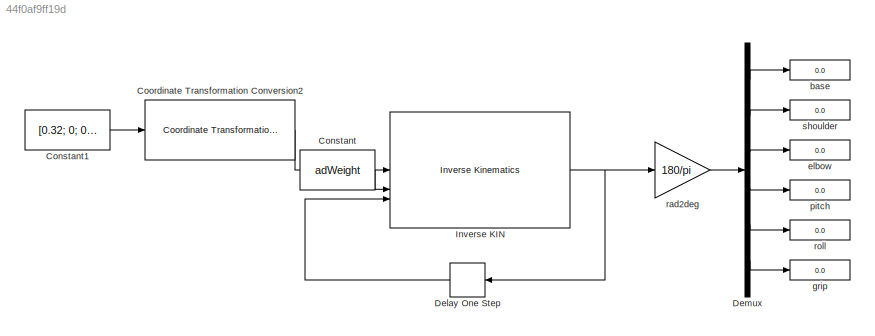
MODEL slx_44f0af9ff19d
KIND model
CONFIG AbsTol = auto
CONFIG EnableMultiTasking = off
CONFIG FixedStep = auto
CONFIG MaxStep = auto
CONFIG MinStep = auto
CONFIG RelTol = 1e-3
CONFIG SampleTimeConstraint = Unconstrained
CONFIG SolverName = VariableStepAuto
CONFIG StartTime = 0.0
CONFIG StopTime = 10.0
BLOCK [Constant] Constant
  Value = adWeight
BLOCK [Constant] Constant1
  Value = [0.32; 0; 0.1]
BLOCK [Reference] Coordinate Transformation Conversion2  REF=robotcorelib/Coordinate Transformation Conversion
  SourceBlock = robotcorelib/Coordinate Transformation Conversion
  SourceType = robotics.slcore.internal.block.CoordinateTransformationConversion
BLOCK [Delay] Delay One Step
  DelayLength = 1
  InitialCondition = adHomeConfig
  InputPortMap = u0
  NameLocation = top
BLOCK [Demux] Demux
  Outputs = 6
BLOCK [Reference] Inverse KIN  REF=robotmaniplib/Inverse Kinematics
  SourceBlock = robotmaniplib/Inverse Kinematics
  SourceType = Inverse Kinematics
BLOCK [Display] base
  Decimation = 1
BLOCK [Display] elbow
  Decimation = 1
BLOCK [Display] grip
  Decimation = 1
BLOCK [Display] pitch
  Decimation = 1
BLOCK [Gain] rad2deg
  Gain = 180/pi
BLOCK [Display] roll
  Decimation = 1
BLOCK [Display] shoulder
  Decimation = 1
LINE Constant1:1 -> Coordinate Transformation Conversion2:1
LINE Constant:1 -> Inverse KIN:2
LINE Coordinate Transformation Conversion2:1 -> Inverse KIN:1
LINE Delay One Step:1 -> Inverse KIN:3
LINE Demux:1 -> base:1
LINE Demux:2 -> shoulder:1
LINE Demux:3 -> elbow:1
LINE Demux:4 -> pitch:1
LINE Demux:5 -> roll:1
LINE Demux:6 -> grip:1
NET Inverse KIN:1 -> Delay One Step:1, rad2deg:1
LINE rad2deg:1 -> Demux:1
note: NET lines group one-source signal fan-out (src -> all destinations, sorted); 1:1 wires keep LINE
